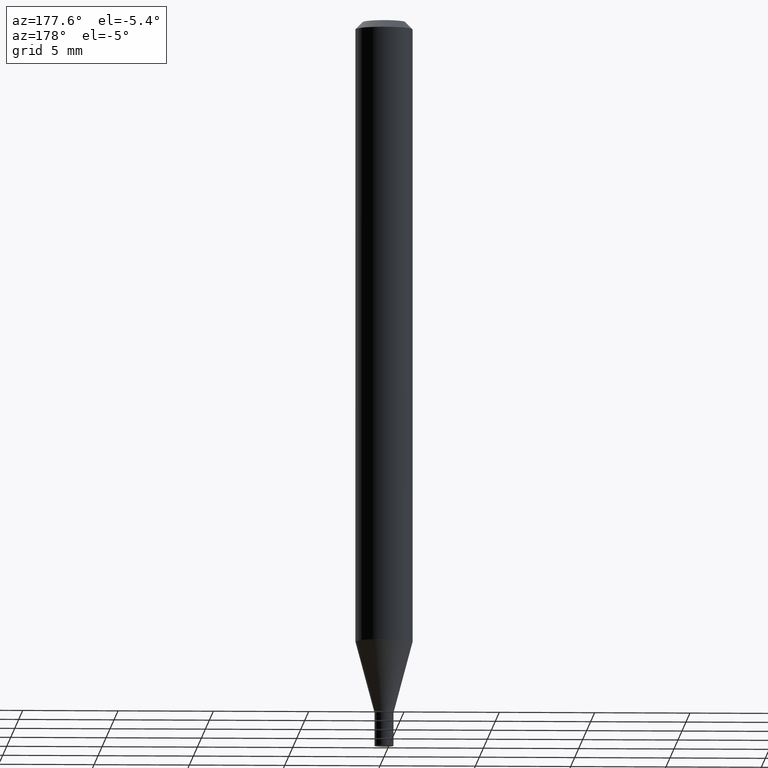
[diagram: clean part render]
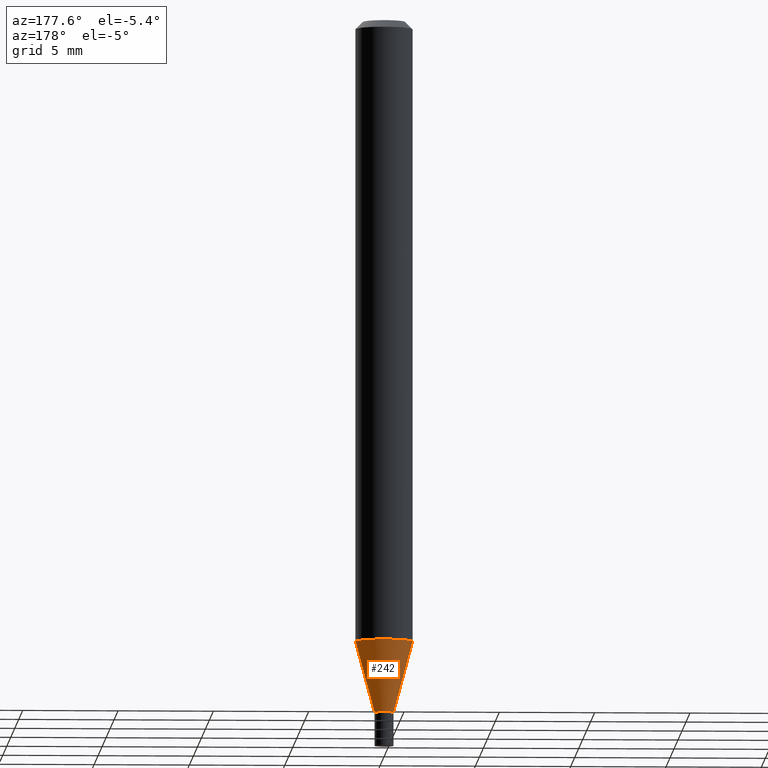
[diagram: same view with one face highlighted and labeled with its STEP entity id]
A machine part, auxiliary view. The second image highlights one B-rep face of the part: STEP entity #242.
In plain terms, the highlighted conical surface has half-angle 15 deg.
Its self-contained STEP definition (entity closure, byte-faithful):
#7 = VERTEX_POINT ( 'NONE', #9 ) ;
#9 = CARTESIAN_POINT ( 'NONE',  ( -0.01969999999999965182, -4.459811605909121856E-15, -1.430900000000000061 ) ) ;
#20 = LINE ( 'NONE', #86, #171 ) ;
#34 = ORIENTED_EDGE ( 'NONE', *, *, #187, .T. ) ;
#39 = EDGE_CURVE ( 'NONE', #431, #216, #379, .T. ) ;
#41 = DIRECTION ( 'NONE',  ( 1.000000000000000000, -6.982962677686273021E-15, 0.000000000000000000 ) ) ;
#52 = DIRECTION ( 'NONE',  ( -2.445468806185136597E-29, 3.491481338843145583E-15, 1.000000000000000000 ) ) ;
#62 = CARTESIAN_POINT ( 'NONE',  ( -0.05904999999999999832, -4.063639483012322948E-15, -1.284043800722163953 ) ) ;
#63 = CARTESIAN_POINT ( 'NONE',  ( 0.05904999999999999832, -4.895558914596035784E-15, -1.284043800722163953 ) ) ;
#75 = VERTEX_POINT ( 'NONE', #339 ) ;
#86 = CARTESIAN_POINT ( 'NONE',  ( 0.01969999999999965182, -5.133525012501073765E-15, -1.430900000000000061 ) ) ;
#91 = DIRECTION ( 'NONE',  ( 0.2588190451025216832, 1.565188264969619798E-15, 0.9659258262890679791 ) ) ;
#94 = EDGE_LOOP ( 'NONE', ( #34, #320, #443, #412 ) ) ;
#127 = CARTESIAN_POINT ( 'NONE',  ( 3.499221314770312017E-29, -4.995960647750656917E-15, -1.430900000000000061 ) ) ;
#161 = AXIS2_PLACEMENT_3D ( 'NONE', #127, #302, #199 ) ;
#170 = AXIS2_PLACEMENT_3D ( 'NONE', #222, #327, #41 ) ;
#171 = VECTOR ( 'NONE', #91, 39.37007874015748143 ) ;
#181 = VECTOR ( 'NONE', #280, 39.37007874015748143 ) ;
#187 = EDGE_CURVE ( 'NONE', #75, #7, #459, .T. ) ;
#199 = DIRECTION ( 'NONE',  ( 1.000000000000000000, -6.982962677686254089E-15, 0.000000000000000000 ) ) ;
#204 = DIRECTION ( 'NONE',  ( 1.000000000000000000, -6.982962677686254089E-15, 0.000000000000000000 ) ) ;
#212 = EDGE_CURVE ( 'NONE', #75, #431, #20, .T. ) ;
#216 = VERTEX_POINT ( 'NONE', #62 ) ;
#222 = CARTESIAN_POINT ( 'NONE',  ( 3.140089060441456086E-29, -4.483214968478662441E-15, -1.284043800722163953 ) ) ;
#239 = CARTESIAN_POINT ( 'NONE',  ( -0.01969999999999965182, -4.855983728805919186E-15, -1.430900000000000061 ) ) ;
#242 = ADVANCED_FACE ( 'NONE', ( #344 ), #345, .T. ) ;
#280 = DIRECTION ( 'NONE',  ( -0.2588190451025216832, 5.211531920934551831E-15, 0.9659258262890679791 ) ) ;
#283 = LINE ( 'NONE', #239, #181 ) ;
#302 = DIRECTION ( 'NONE',  ( -2.445468806185136597E-29, 3.491481338843145583E-15, 1.000000000000000000 ) ) ;
#320 = ORIENTED_EDGE ( 'NONE', *, *, #365, .T. ) ;
#323 = AXIS2_PLACEMENT_3D ( 'NONE', #456, #52, #204 ) ;
#327 = DIRECTION ( 'NONE',  ( -2.445468806185136597E-29, 3.491481338843145583E-15, 1.000000000000000000 ) ) ;
#339 = CARTESIAN_POINT ( 'NONE',  ( 0.01969999999999965182, -5.133525012501073765E-15, -1.430900000000000061 ) ) ;
#344 = FACE_OUTER_BOUND ( 'NONE', #94, .T. ) ;
#345 = CONICAL_SURFACE ( 'NONE', #323, 0.01969999999999965182, 0.2617993877991502960 ) ;
#365 = EDGE_CURVE ( 'NONE', #7, #216, #283, .T. ) ;
#379 = CIRCLE ( 'NONE', #170, 0.05904999999999999832 ) ;
#412 = ORIENTED_EDGE ( 'NONE', *, *, #212, .F. ) ;
#431 = VERTEX_POINT ( 'NONE', #63 ) ;
#443 = ORIENTED_EDGE ( 'NONE', *, *, #39, .F. ) ;
#456 = CARTESIAN_POINT ( 'NONE',  ( 3.499221314770312017E-29, -4.995960647750656917E-15, -1.430900000000000061 ) ) ;
#459 = CIRCLE ( 'NONE', #161, 0.01969999999999965182 ) ;